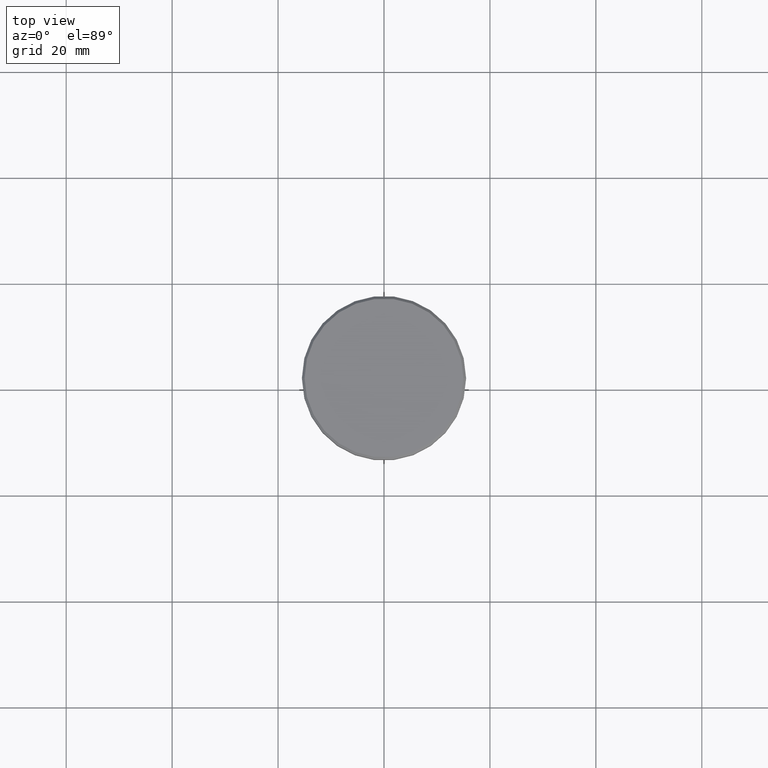
[diagram: clean part render]
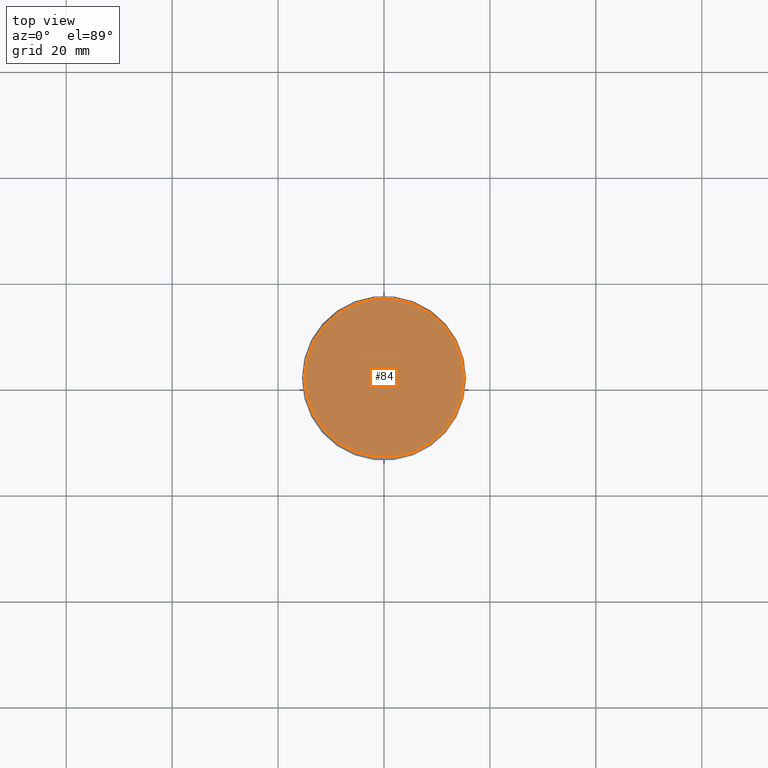
[diagram: same view with one face highlighted and labeled with its STEP entity id]
A machine part, top view. The second image highlights one B-rep face of the part: STEP entity #84.
In plain terms, the highlighted planar face has unit normal (0, -0, 1).
Its self-contained STEP definition (entity closure, byte-faithful):
#56 = DIRECTION ( 'NONE',  ( 0.000000000000000000, -0.000000000000000000, 1.000000000000000000 ) ) ;
#84 = ADVANCED_FACE ( 'NONE', ( #149 ), #508, .T. ) ;
#127 = DIRECTION ( 'NONE',  ( -0.000000000000000000, -0.000000000000000000, 1.000000000000000000 ) ) ;
#137 = DIRECTION ( 'NONE',  ( -0.000000000000000000, -0.000000000000000000, 1.000000000000000000 ) ) ;
#149 = FACE_OUTER_BOUND ( 'NONE', #679, .T. ) ;
#427 = DIRECTION ( 'NONE',  ( 1.000000000000000000, 0.000000000000000000, 0.000000000000000000 ) ) ;
#435 = DIRECTION ( 'NONE',  ( 1.000000000000000000, 0.000000000000000000, 0.000000000000000000 ) ) ;
#495 = EDGE_CURVE ( 'NONE', #967, #1150, #499, .T. ) ;
#499 = CIRCLE ( 'NONE', #654, 15.00000000000002665 ) ;
#508 = PLANE ( 'NONE',  #614 ) ;
#614 = AXIS2_PLACEMENT_3D ( 'NONE', #879, #56, #427 ) ;
#654 = AXIS2_PLACEMENT_3D ( 'NONE', #881, #137, #435 ) ;
#679 = EDGE_LOOP ( 'NONE', ( #775, #725 ) ) ;
#720 = CIRCLE ( 'NONE', #795, 15.00000000000002665 ) ;
#725 = ORIENTED_EDGE ( 'NONE', *, *, #1003, .T. ) ;
#775 = ORIENTED_EDGE ( 'NONE', *, *, #495, .T. ) ;
#777 = DIRECTION ( 'NONE',  ( 1.000000000000000000, 0.000000000000000000, 0.000000000000000000 ) ) ;
#795 = AXIS2_PLACEMENT_3D ( 'NONE', #953, #127, #777 ) ;
#879 = CARTESIAN_POINT ( 'NONE',  ( 0.000000000000000000, 0.000000000000000000, 0.000000000000000000 ) ) ;
#881 = CARTESIAN_POINT ( 'NONE',  ( 0.000000000000000000, 0.000000000000000000, 0.000000000000000000 ) ) ;
#945 = CARTESIAN_POINT ( 'NONE',  ( -15.00000000000002665, 0.000000000000000000, 0.000000000000000000 ) ) ;
#953 = CARTESIAN_POINT ( 'NONE',  ( 0.000000000000000000, 0.000000000000000000, 0.000000000000000000 ) ) ;
#964 = CARTESIAN_POINT ( 'NONE',  ( 15.00000000000002665, 1.867586368699715348E-15, 0.000000000000000000 ) ) ;
#967 = VERTEX_POINT ( 'NONE', #945 ) ;
#1003 = EDGE_CURVE ( 'NONE', #1150, #967, #720, .T. ) ;
#1150 = VERTEX_POINT ( 'NONE', #964 ) ;